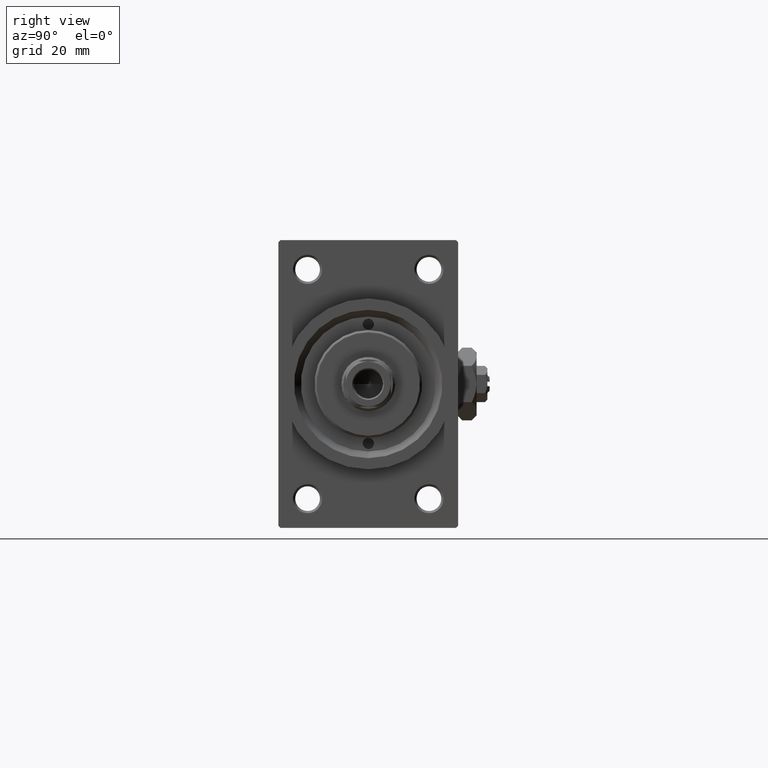
[diagram: clean part render]
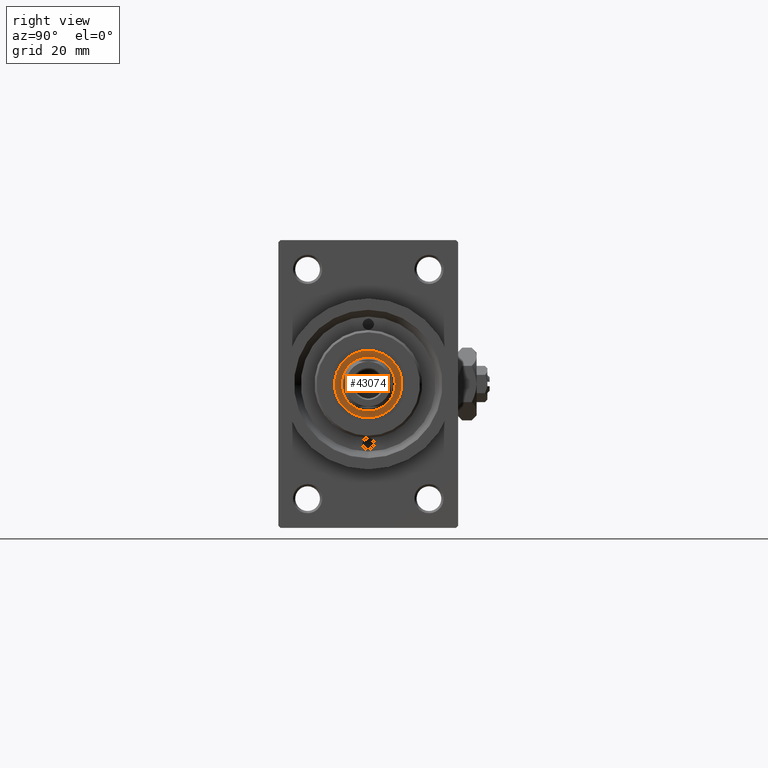
[diagram: same view with one face highlighted and labeled with its STEP entity id]
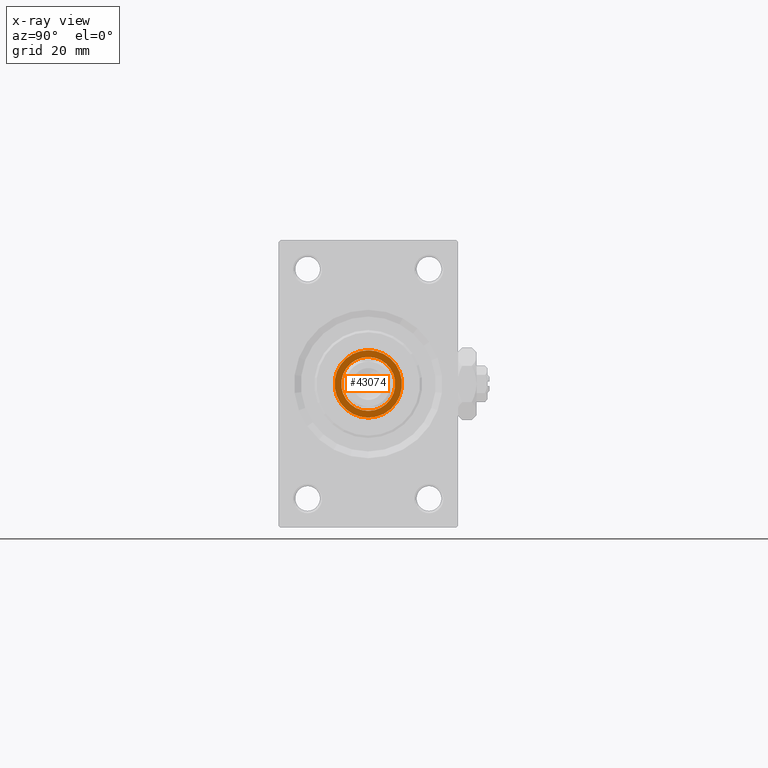
[diagram: x-ray of the same camera — body ghosted, the highlighted face saturated]
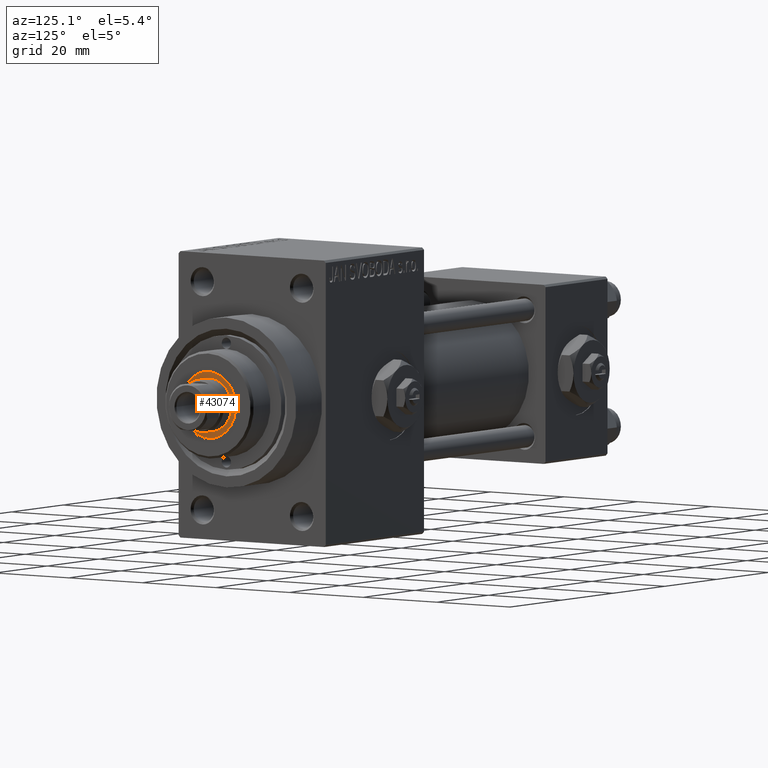
[diagram: same view with one face highlighted and labeled with its STEP entity id]
A machine part, right view. The second image highlights one B-rep face of the part: STEP entity #43074.
The next image is the same camera in x-ray: the body ghosted, the highlighted face saturated — about 0% of this face is hidden behind the body in this view.
A second angle (auxiliary view) of the same face is appended — the face is thin or edge-on in the first view.
In plain terms, the highlighted planar face has unit normal (1, -0, -0).
Its self-contained STEP definition (entity closure, byte-faithful):
#234 = CARTESIAN_POINT ( 'NONE',  ( 7.500000000000000888, 0.000000000000000000, 49.75999999999999801 ) ) ;
#2422 = EDGE_CURVE ( 'NONE', #39082, #22771, #47231, .T. ) ;
#5025 = CIRCLE ( 'NONE', #9815, 7.500000000000000888 ) ;
#5986 = VERTEX_POINT ( 'NONE', #234 ) ;
#6620 = CIRCLE ( 'NONE', #23330, 7.500000000000000888 ) ;
#6706 = FACE_BOUND ( 'NONE', #46157, .T. ) ;
#6832 = AXIS2_PLACEMENT_3D ( 'NONE', #48287, #48033, #47782 ) ;
#6896 = CARTESIAN_POINT ( 'NONE',  ( 0.000000000000000000, 0.000000000000000000, 49.75999999999999801 ) ) ;
#6950 = DIRECTION ( 'NONE',  ( 0.000000000000000000, 0.000000000000000000, 1.000000000000000000 ) ) ;
#7110 = CARTESIAN_POINT ( 'NONE',  ( 6.000000000000000888, 0.000000000000000000, 49.75999999999999801 ) ) ;
#9815 = AXIS2_PLACEMENT_3D ( 'NONE', #30347, #6950, #37067 ) ;
#14142 = ORIENTED_EDGE ( 'NONE', *, *, #48942, .T. ) ;
#14662 = PLANE ( 'NONE',  #6832 ) ;
#18173 = CARTESIAN_POINT ( 'NONE',  ( 0.000000000000000000, 0.000000000000000000, 49.75999999999999801 ) ) ;
#18795 = CARTESIAN_POINT ( 'NONE',  ( -6.000000000000000888, 7.347880794884120722E-16, 49.75999999999999801 ) ) ;
#20756 = CARTESIAN_POINT ( 'NONE',  ( -7.500000000000000888, 9.184850993605149917E-16, 49.75999999999999801 ) ) ;
#21521 = DIRECTION ( 'NONE',  ( 1.000000000000000000, 0.000000000000000000, 0.000000000000000000 ) ) ;
#22771 = VERTEX_POINT ( 'NONE', #7110 ) ;
#23330 = AXIS2_PLACEMENT_3D ( 'NONE', #47906, #29008, #21521 ) ;
#25376 = AXIS2_PLACEMENT_3D ( 'NONE', #18173, #48543, #36100 ) ;
#27573 = EDGE_CURVE ( 'NONE', #22771, #39082, #28595, .T. ) ;
#28595 = CIRCLE ( 'NONE', #25376, 6.000000000000000888 ) ;
#29008 = DIRECTION ( 'NONE',  ( 0.000000000000000000, 0.000000000000000000, 1.000000000000000000 ) ) ;
#29432 = EDGE_LOOP ( 'NONE', ( #38654, #14142 ) ) ;
#29781 = ORIENTED_EDGE ( 'NONE', *, *, #27573, .T. ) ;
#30061 = DIRECTION ( 'NONE',  ( -0.000000000000000000, -0.000000000000000000, -1.000000000000000000 ) ) ;
#30347 = CARTESIAN_POINT ( 'NONE',  ( 0.000000000000000000, 0.000000000000000000, 49.75999999999999801 ) ) ;
#33109 = FACE_OUTER_BOUND ( 'NONE', #29432, .T. ) ;
#34259 = DIRECTION ( 'NONE',  ( 1.000000000000000000, 0.000000000000000000, 0.000000000000000000 ) ) ;
#36100 = DIRECTION ( 'NONE',  ( 1.000000000000000000, 0.000000000000000000, 0.000000000000000000 ) ) ;
#37067 = DIRECTION ( 'NONE',  ( 1.000000000000000000, 0.000000000000000000, 0.000000000000000000 ) ) ;
#38654 = ORIENTED_EDGE ( 'NONE', *, *, #48445, .T. ) ;
#38964 = ORIENTED_EDGE ( 'NONE', *, *, #2422, .T. ) ;
#39082 = VERTEX_POINT ( 'NONE', #18795 ) ;
#41871 = VERTEX_POINT ( 'NONE', #20756 ) ;
#43074 = ADVANCED_FACE ( 'NONE', ( #33109, #6706 ), #14662, .T. ) ;
#43248 = AXIS2_PLACEMENT_3D ( 'NONE', #6896, #30061, #34259 ) ;
#46157 = EDGE_LOOP ( 'NONE', ( #29781, #38964 ) ) ;
#47231 = CIRCLE ( 'NONE', #43248, 6.000000000000000888 ) ;
#47782 = DIRECTION ( 'NONE',  ( 1.000000000000000000, 0.000000000000000000, -0.000000000000000000 ) ) ;
#47906 = CARTESIAN_POINT ( 'NONE',  ( 0.000000000000000000, 0.000000000000000000, 49.75999999999999801 ) ) ;
#48033 = DIRECTION ( 'NONE',  ( 0.000000000000000000, 0.000000000000000000, 1.000000000000000000 ) ) ;
#48287 = CARTESIAN_POINT ( 'NONE',  ( 0.000000000000000000, 0.000000000000000000, 49.75999999999999801 ) ) ;
#48445 = EDGE_CURVE ( 'NONE', #5986, #41871, #5025, .T. ) ;
#48543 = DIRECTION ( 'NONE',  ( -0.000000000000000000, -0.000000000000000000, -1.000000000000000000 ) ) ;
#48942 = EDGE_CURVE ( 'NONE', #41871, #5986, #6620, .T. ) ;